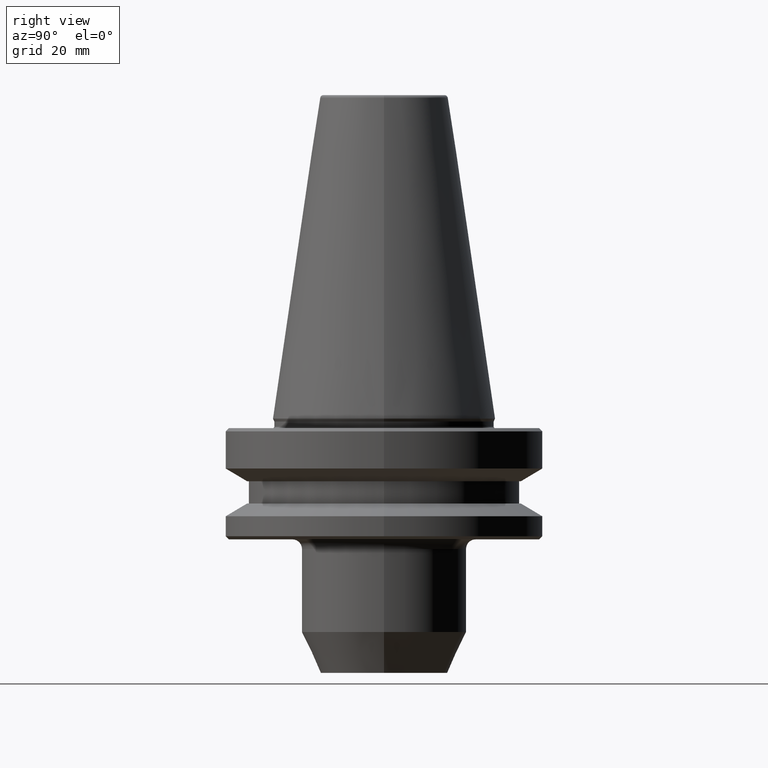
[diagram: clean part render]
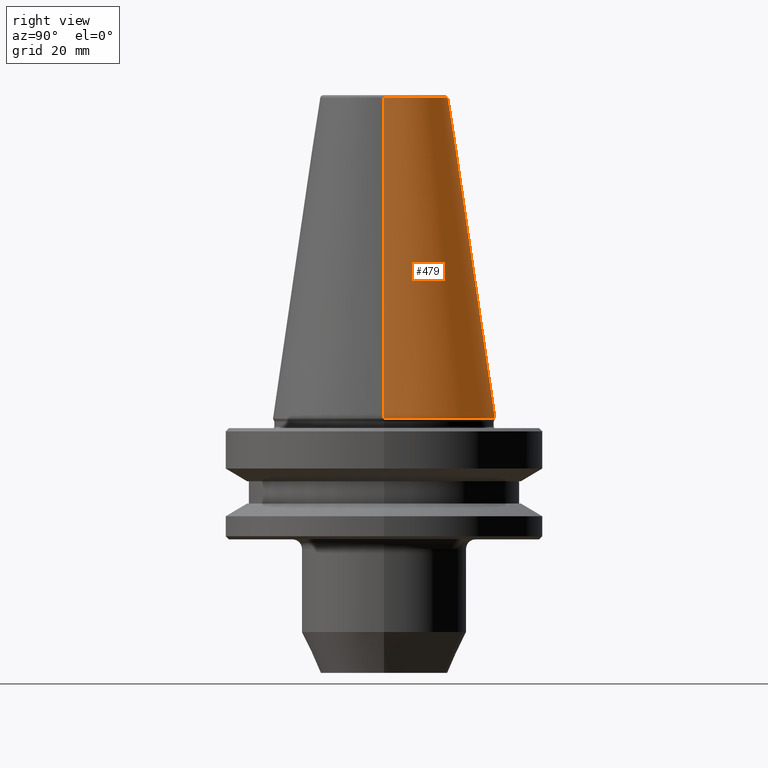
[diagram: same view with one face highlighted and labeled with its STEP entity id]
A machine part, right view. The second image highlights one B-rep face of the part: STEP entity #479.
In plain terms, the highlighted conical surface has half-angle 8.297 deg.
Its self-contained STEP definition (entity closure, byte-faithful):
#16 = AXIS2_PLACEMENT_3D ( 'NONE', #252, #905, #219 ) ;
#34 = VECTOR ( 'NONE', #530, 1000.000000000000100 ) ;
#51 = ORIENTED_EDGE ( 'NONE', *, *, #979, .T. ) ;
#55 = CARTESIAN_POINT ( 'NONE',  ( -34.92499999999920800, 4.277078946022033900E-015, 1.084202172485504400E-016 ) ) ;
#81 = VERTEX_POINT ( 'NONE', #91 ) ;
#84 = VECTOR ( 'NONE', #538, 1000.000000000000100 ) ;
#91 = CARTESIAN_POINT ( 'NONE',  ( 34.92499999999920800, 0.0000000000000000000, 1.084202172485504400E-016 ) ) ;
#183 = VERTEX_POINT ( 'NONE', #55 ) ;
#214 = ORIENTED_EDGE ( 'NONE', *, *, #762, .F. ) ;
#219 = DIRECTION ( 'NONE',  ( 1.000000000000000000, 0.0000000000000000000, 0.0000000000000000000 ) ) ;
#252 = CARTESIAN_POINT ( 'NONE',  ( 0.0000000000000000000, 0.0000000000000000000, 100.9443082234283100 ) ) ;
#254 = ORIENTED_EDGE ( 'NONE', *, *, #966, .T. ) ;
#276 = CONICAL_SURFACE ( 'NONE', #845, 34.92499999999920800, 0.1448138426689056500 ) ;
#284 = FACE_OUTER_BOUND ( 'NONE', #519, .T. ) ;
#378 = CARTESIAN_POINT ( 'NONE',  ( 0.0000000000000000000, 0.0000000000000000000, 0.0000000000000000000 ) ) ;
#479 = ADVANCED_FACE ( 'NONE', ( #284 ), #276, .T. ) ;
#484 = LINE ( 'NONE', #717, #84 ) ;
#502 = DIRECTION ( 'NONE',  ( 1.000000000000000000, 0.0000000000000000000, 0.0000000000000000000 ) ) ;
#519 = EDGE_LOOP ( 'NONE', ( #933, #51, #254, #214 ) ) ;
#530 = DIRECTION ( 'NONE',  ( 0.1443082234293908100, 1.767266039134445400E-017, -0.9895327870518757500 ) ) ;
#538 = DIRECTION ( 'NONE',  ( -0.1443082234293908100, 0.0000000000000000000, -0.9895327870518757500 ) ) ;
#603 = VERTEX_POINT ( 'NONE', #994 ) ;
#706 = CARTESIAN_POINT ( 'NONE',  ( 34.92499999999920800, 4.277078946022033900E-015, 0.0000000000000000000 ) ) ;
#713 = CIRCLE ( 'NONE', #16, 20.20381645192126300 ) ;
#717 = CARTESIAN_POINT ( 'NONE',  ( -34.92499999999920800, 0.0000000000000000000, 0.0000000000000000000 ) ) ;
#738 = EDGE_CURVE ( 'NONE', #943, #603, #713, .T. ) ;
#762 = EDGE_CURVE ( 'NONE', #603, #183, #484, .T. ) ;
#820 = LINE ( 'NONE', #706, #34 ) ;
#844 = CIRCLE ( 'NONE', #888, 34.92499999999920800 ) ;
#845 = AXIS2_PLACEMENT_3D ( 'NONE', #997, #978, #938 ) ;
#857 = DIRECTION ( 'NONE',  ( -0.0000000000000000000, -0.0000000000000000000, 1.000000000000000000 ) ) ;
#886 = CARTESIAN_POINT ( 'NONE',  ( 20.20381645192126300, 3.375666430431317700E-015, 100.9443082234283100 ) ) ;
#888 = AXIS2_PLACEMENT_3D ( 'NONE', #378, #857, #502 ) ;
#905 = DIRECTION ( 'NONE',  ( -0.0000000000000000000, -0.0000000000000000000, 1.000000000000000000 ) ) ;
#933 = ORIENTED_EDGE ( 'NONE', *, *, #738, .F. ) ;
#938 = DIRECTION ( 'NONE',  ( -1.000000000000000000, 0.0000000000000000000, 0.0000000000000000000 ) ) ;
#943 = VERTEX_POINT ( 'NONE', #886 ) ;
#966 = EDGE_CURVE ( 'NONE', #81, #183, #844, .T. ) ;
#978 = DIRECTION ( 'NONE',  ( 0.0000000000000000000, 0.0000000000000000000, -1.000000000000000000 ) ) ;
#979 = EDGE_CURVE ( 'NONE', #943, #81, #820, .T. ) ;
#994 = CARTESIAN_POINT ( 'NONE',  ( -20.20381645192126300, 0.0000000000000000000, 100.9443082234283100 ) ) ;
#997 = CARTESIAN_POINT ( 'NONE',  ( 0.0000000000000000000, 0.0000000000000000000, 0.0000000000000000000 ) ) ;